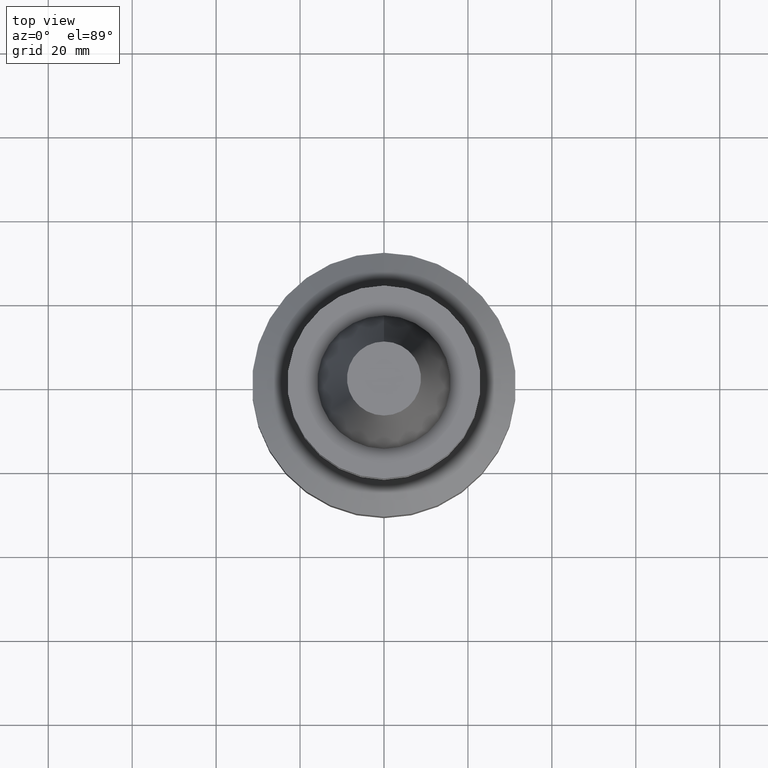
[diagram: clean part render]
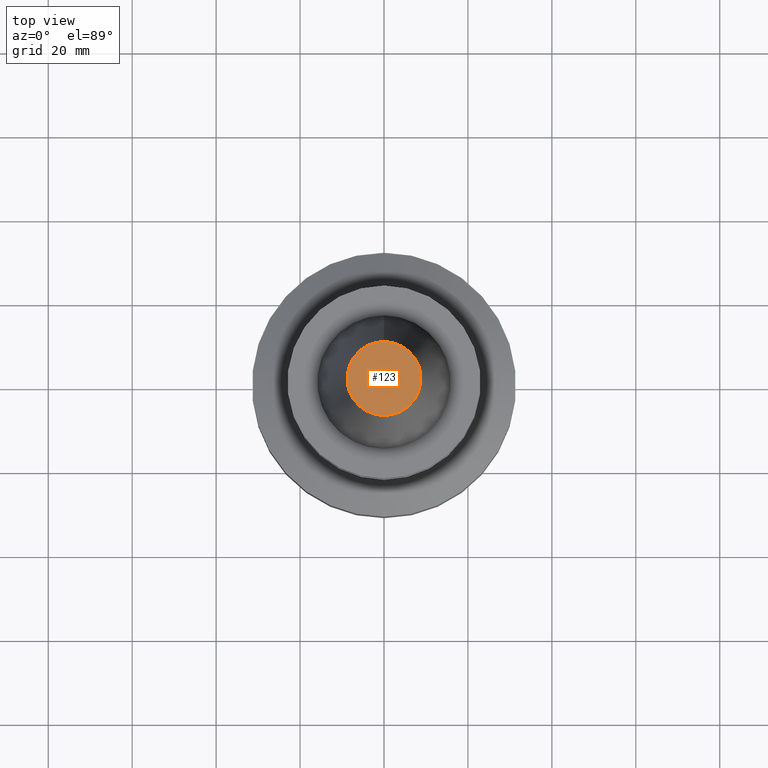
[diagram: same view with one face highlighted and labeled with its STEP entity id]
A machine part, top view. The second image highlights one B-rep face of the part: STEP entity #123.
In plain terms, the highlighted planar face has unit normal (-0, -0, 1).
Its self-contained STEP definition (entity closure, byte-faithful):
#120=EDGE_CURVE('Unnamed[1]',#262,#262,#263,.T.);
#123=ADVANCED_FACE('Unnamed[1]',(#266),#267,.T.);
#262=VERTEX_POINT('',#433);
#263=CIRCLE('',#434,8.81650000198669);
#266=FACE_OUTER_BOUND('',#438,.T.);
#267=PLANE('',#439);
#433=CARTESIAN_POINT('',(-2.96364525393659E-015,8.81650000198669,48.4));
#434=AXIS2_PLACEMENT_3D('',#598,#599,#600);
#438=EDGE_LOOP('',(#602));
#439=AXIS2_PLACEMENT_3D('',#603,#604,#605);
#598=CARTESIAN_POINT('',(-2.96364525393659E-015,-5.92729050787319E-015,48.4));
#599=DIRECTION('',(6.12323399573677E-017,1.22464679914764E-016,-1.0));
#600=DIRECTION('',(-1.23259516440789E-032,1.0,1.22464679914764E-016));
#602=ORIENTED_EDGE('',*,*,#120,.F.);
#603=CARTESIAN_POINT('',(-2.96364525393659E-015,4.40825000099334,48.4));
#604=DIRECTION('',(-6.12323399573677E-017,-1.22464679914735E-016,1.0));
#605=DIRECTION('',(1.23259516440783E-032,-1.0,-1.22464679914735E-016));